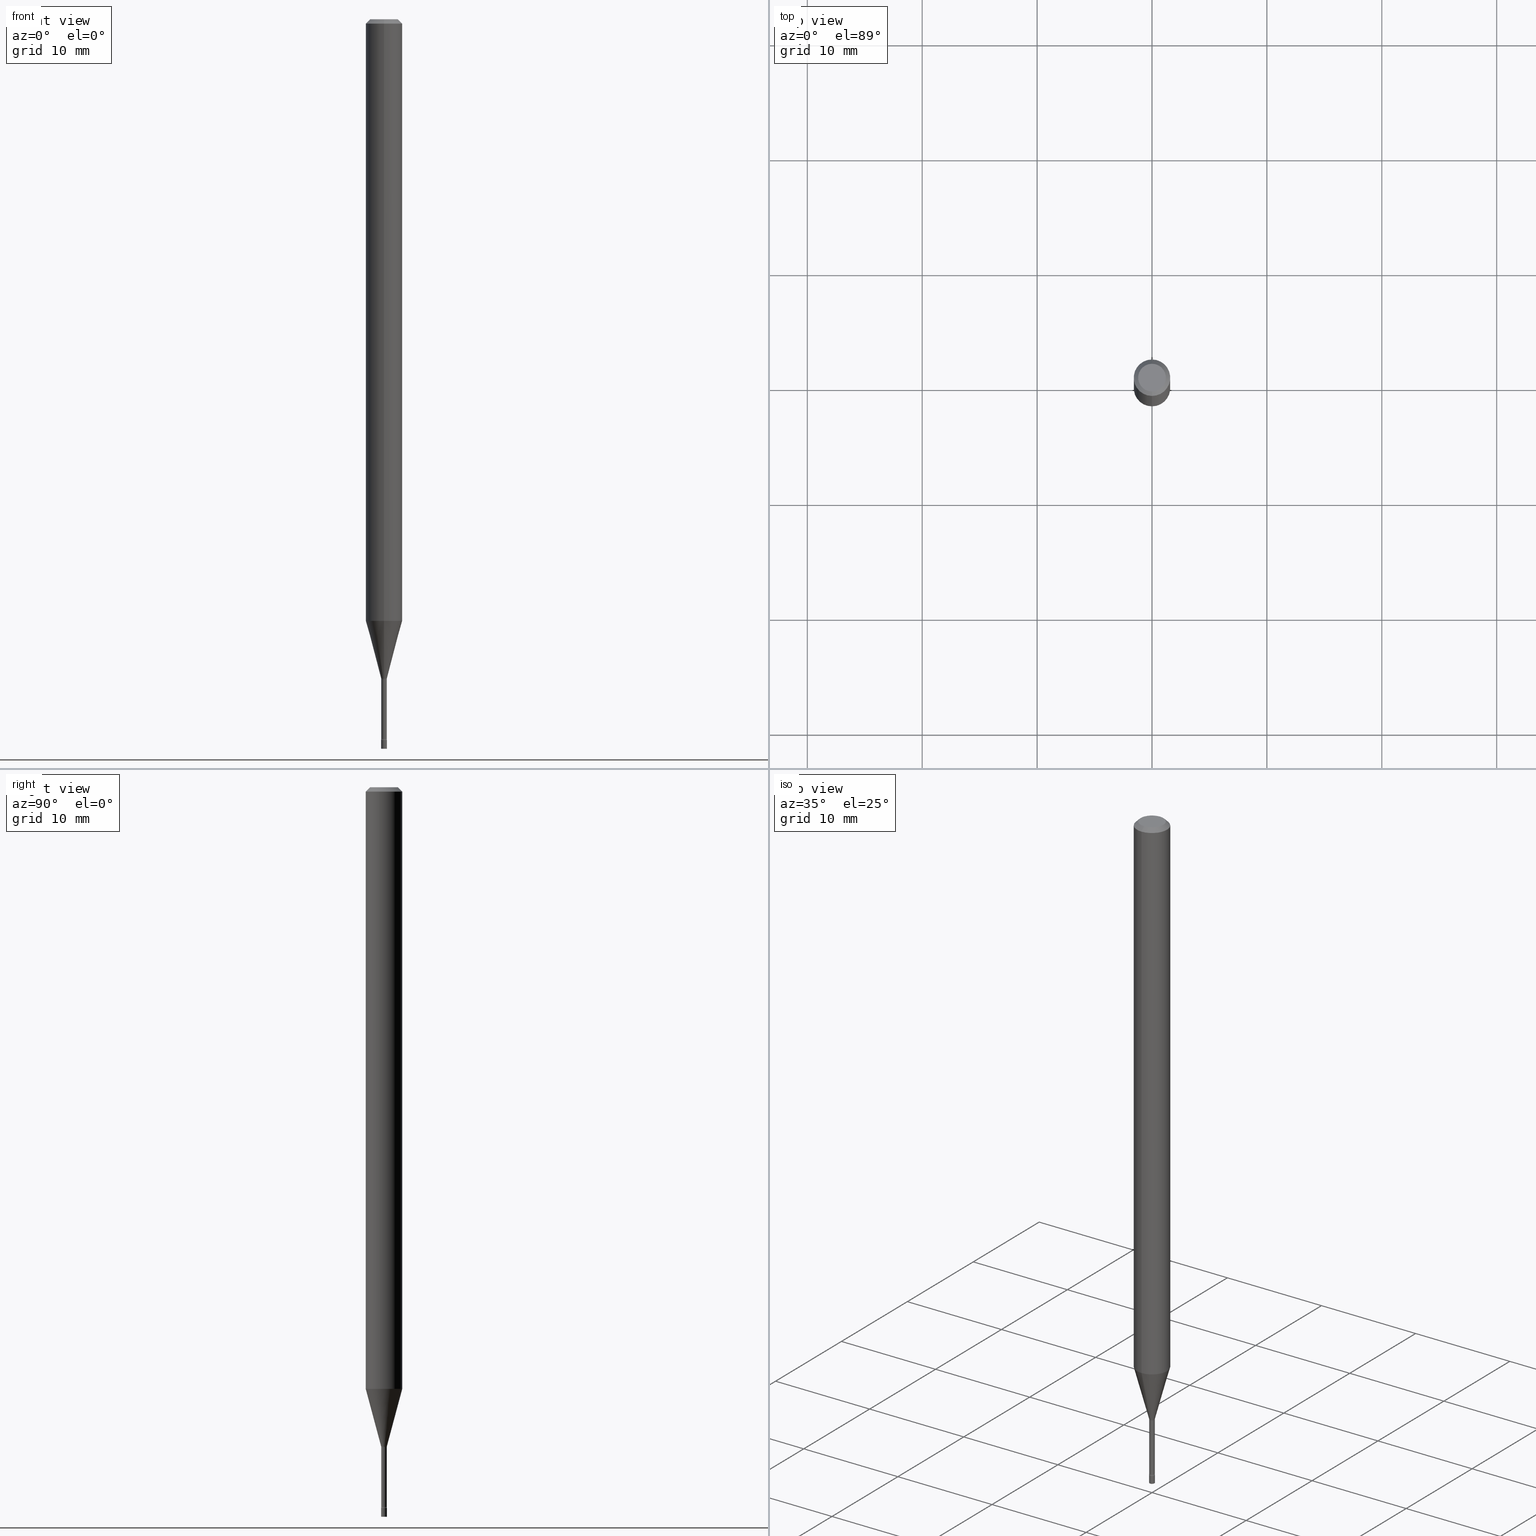
[diagram: canonical four-view strip — front | top / right | iso, engineering-drawing reading convention]
A machine part, canonical four-view strip (front | top / right | iso — engineering-drawing reading convention). The complete STEP part file that produces these views, byte-faithful:
ISO-10303-21;
HEADER;
FILE_DESCRIPTION (( 'STEP AP203' ),
    '1' );
FILE_NAME ('03591.STEP',
    '2024-03-08T21:59:14',
    ( '' ),
    ( '' ),
    'SwSTEP 2.0',
    'SolidWorks 2023',
    '' );
FILE_SCHEMA (( 'CONFIG_CONTROL_DESIGN' ));
ENDSEC;

DATA;
#1 = FACE_OUTER_BOUND ( 'NONE', #404, .T. ) ;
#2 = CC_DESIGN_PERSON_AND_ORGANIZATION_ASSIGNMENT ( #50, #459, ( #91 ) ) ;
#3 = ORIENTED_EDGE ( 'NONE', *, *, #140, .F. ) ;
#4 = DIRECTION ( 'NONE',  ( 1.000000000000000000, -7.105427357601001070E-15, 4.926315979417128500E-29 ) ) ;
#5 = DIRECTION ( 'NONE',  ( -2.438088387897960049E-29, 3.491481338843145188E-15, 1.000000000000000000 ) ) ;
#6 = CARTESIAN_POINT ( 'NONE',  ( 6.679101716150980493E-17, 0.009399999999992103908, -2.261974787463811420 ) ) ;
#7 = TOROIDAL_SURFACE ( 'NONE', #72, 0.02440000000000002583, 0.01500000000000000291 ) ;
#8 = LINE ( 'NONE', #485, #308 ) ;
#9 = DIRECTION ( 'NONE',  ( 1.000000000000000000, -7.105427357601001070E-15, 4.926315979417128500E-29 ) ) ;
#10 = ADVANCED_FACE ( 'NONE', ( #1 ), #291, .T. ) ;
#11 = DIRECTION ( 'NONE',  ( -6.982962677686265922E-15, -1.000000000000000000, 0.000000000000000000 ) ) ;
#12 = SHAPE_DEFINITION_REPRESENTATION ( #174, #416 ) ;
#13 = TOROIDAL_SURFACE ( 'NONE', #495, 0.02440000000000002583, 0.01500000000000000291 ) ;
#14 = DATE_TIME_ROLE ( 'creation_date' ) ;
#15 = DATE_TIME_ROLE ( 'classification_date' ) ;
#16 = PERSON_AND_ORGANIZATION ( #407, #465 ) ;
#17 = DIRECTION ( 'NONE',  ( -2.445441956787615872E-29, 3.491519788708568062E-15, 1.000000000000000000 ) ) ;
#18 = AXIS2_PLACEMENT_3D ( 'NONE', #483, #240, #154 ) ;
#19 = CARTESIAN_POINT ( 'NONE',  ( 3.840629472727447874E-16, 0.04749999999999999362, -1.947592745229184119E-16 ) ) ;
#20 = VERTEX_POINT ( 'NONE', #446 ) ;
#21 = CARTESIAN_POINT ( 'NONE',  ( 4.440892098500625669E-16, 0.06250000000000000000, -2.182199867942855038E-16 ) ) ;
#22 = DIRECTION ( 'NONE',  ( -1.000000000000000000, 6.982962677686265922E-15, -4.883557194083112340E-29 ) ) ;
#23 = CARTESIAN_POINT ( 'NONE',  ( 5.531588783120004822E-29, -7.897642759363587821E-15, -2.261974787463811420 ) ) ;
#24 = CIRCLE ( 'NONE', #380, 0.01000000000000000021 ) ;
#25 = ORIENTED_EDGE ( 'NONE', *, *, #87, .T. ) ;
#26 = DIRECTION ( 'NONE',  ( -6.982962677686265922E-15, -1.000000000000000000, 0.000000000000000000 ) ) ;
#27 = CARTESIAN_POINT ( 'NONE',  ( -6.920892941964220806E-17, -0.009911112605671861323, -2.258092501787273498 ) ) ;
#28 = CARTESIAN_POINT ( 'NONE',  ( 6.982962677692379396E-17, 0.009999999999991271080, -2.500000000000000000 ) ) ;
#29 = EDGE_LOOP ( 'NONE', ( #67, #158, #504, #162 ) ) ;
#30 = LINE ( 'NONE', #61, #131 ) ;
#31 = CYLINDRICAL_SURFACE ( 'NONE', #388, 0.01000000000000000021 ) ;
#32 = ORIENTED_EDGE ( 'NONE', *, *, #261, .T. ) ;
#33 = VERTEX_POINT ( 'NONE', #338 ) ;
#34 = VERTEX_POINT ( 'NONE', #209 ) ;
#35 = AXIS2_PLACEMENT_3D ( 'NONE', #68, #232, #397 ) ;
#36 = AXIS2_PLACEMENT_3D ( 'NONE', #23, #505, #151 ) ;
#37 = CARTESIAN_POINT ( 'NONE',  ( -4.287811248607203282E-16, -0.06250000000000005551, -0.01499999999999981209 ) ) ;
#38 = CARTESIAN_POINT ( 'NONE',  ( 7.070282463940929696E-46, -1.009471153714767306E-31, -2.891208455926143242E-17 ) ) ;
#39 = VERTEX_POINT ( 'NONE', #166 ) ;
#40 = ORIENTED_EDGE ( 'NONE', *, *, #175, .F. ) ;
#41 = ORIENTED_EDGE ( 'NONE', *, *, #163, .F. ) ;
#42 = EDGE_CURVE ( 'NONE', #453, #242, #259, .T. ) ;
#43 = DIRECTION ( 'NONE',  ( -2.445441956787615872E-29, 3.491519788708568062E-15, 1.000000000000000000 ) ) ;
#44 = CARTESIAN_POINT ( 'NONE',  ( 6.040241633265411744E-29, -8.624053878110164855E-15, -2.470000000000000195 ) ) ;
#45 = CIRCLE ( 'NONE', #62, 0.009911112605663977004 ) ;
#46 = VECTOR ( 'NONE', #454, 39.37007874015748143 ) ;
#47 = CALENDAR_DATE ( 2024, 8, 3 ) ;
#48 = ADVANCED_FACE ( 'NONE', ( #369 ), #325, .T. ) ;
#49 = DATE_AND_TIME ( #305, #52 ) ;
#50 = PERSON_AND_ORGANIZATION ( #407, #465 ) ;
#51 = CIRCLE ( 'NONE', #156, 0.01500000000000002720 ) ;
#52 = LOCAL_TIME ( 16, 59, 14.00000000000000000, #93 ) ;
#53 = ADVANCED_FACE ( 'NONE', ( #246 ), #479, .T. ) ;
#54 = COORDINATED_UNIVERSAL_TIME_OFFSET ( 5, 0, .BEHIND. ) ;
#55 = DIRECTION ( 'NONE',  ( 2.445441956787615872E-29, -3.491519788708568062E-15, -1.000000000000000000 ) ) ;
#56 = PERSON_AND_ORGANIZATION ( #407, #465 ) ;
#57 = CARTESIAN_POINT ( 'NONE',  ( -6.920892941964220806E-17, -0.009911112605671861323, -2.258092501787273498 ) ) ;
#58 = DIRECTION ( 'NONE',  ( -6.982962677686265922E-15, -1.000000000000000000, 4.370956789862821150E-15 ) ) ;
#59 = ADVANCED_FACE ( 'NONE', ( #518 ), #74, .F. ) ;
#60 = CARTESIAN_POINT ( 'NONE',  ( -4.364351673553912750E-16, -0.06250000000000005551, -0.01499999999999981209 ) ) ;
#61 = CARTESIAN_POINT ( 'NONE',  ( 6.679101716144950638E-17, 0.009400000000000012512, -3.282028601386058352E-17 ) ) ;
#62 = AXIS2_PLACEMENT_3D ( 'NONE', #310, #503, #386 ) ;
#63 = CARTESIAN_POINT ( 'NONE',  ( 0.000000000000000000, 0.000000000000000000, 0.000000000000000000 ) ) ;
#64 = CC_DESIGN_SECURITY_CLASSIFICATION ( #357, ( #136 ) ) ;
#65 = EDGE_CURVE ( 'NONE', #39, #228, #306, .T. ) ;
#66 = DIRECTION ( 'NONE',  ( -6.982962677686265922E-15, -1.000000000000000000, 3.491519788708568062E-15 ) ) ;
#67 = ORIENTED_EDGE ( 'NONE', *, *, #491, .F. ) ;
#68 = CARTESIAN_POINT ( 'NONE',  ( -1.703842893354895678E-16, -0.02440000000000789801, -2.261974787463811420 ) ) ;
#69 = ORIENTED_EDGE ( 'NONE', *, *, #42, .F. ) ;
#70 = DIRECTION ( 'NONE',  ( -6.982962677686265922E-15, -1.000000000000000000, 0.000000000000000000 ) ) ;
#71 = EDGE_LOOP ( 'NONE', ( #507, #444, #276, #429 ) ) ;
#72 = AXIS2_PLACEMENT_3D ( 'NONE', #311, #437, #277 ) ;
#73 = VERTEX_POINT ( 'NONE', #424 ) ;
#74 = PLANE ( 'NONE',  #18 ) ;
#75 = LINE ( 'NONE', #110, #408 ) ;
#76 = ORIENTED_EDGE ( 'NONE', *, *, #359, .T. ) ;
#77 = ORIENTED_EDGE ( 'NONE', *, *, #491, .T. ) ;
#78 = FACE_OUTER_BOUND ( 'NONE', #71, .T. ) ;
#79 = DIRECTION ( 'NONE',  ( 1.000000000000000000, -6.982962677686265922E-15, 4.876176775795935793E-29 ) ) ;
#80 = TOROIDAL_SURFACE ( 'NONE', #337, 0.02440000000000000155, 0.01500000000000002720 ) ;
#81 = AXIS2_PLACEMENT_3D ( 'NONE', #385, #22, #147 ) ;
#82 = EDGE_LOOP ( 'NONE', ( #332, #76 ) ) ;
#83 = EDGE_LOOP ( 'NONE', ( #241, #32, #414, #150 ) ) ;
#84 = DIRECTION ( 'NONE',  ( -2.445441956787615872E-29, 3.491519788708568062E-15, 1.000000000000000000 ) ) ;
#85 = ORIENTED_EDGE ( 'NONE', *, *, #42, .T. ) ;
#86 = MECHANICAL_CONTEXT ( 'NONE', #331, 'mechanical' ) ;
#87 = EDGE_CURVE ( 'NONE', #73, #242, #170, .T. ) ;
#88 = CIRCLE ( 'NONE', #273, 0.06250000000000000000 ) ;
#89 = DATE_AND_TIME ( #349, #171 ) ;
#90 = AXIS2_PLACEMENT_3D ( 'NONE', #411, #43, #286 ) ;
#91 = PRODUCT_DEFINITION ( 'UNKNOWN', '', #136, #347 ) ;
#92 = APPROVAL_STATUS ( 'not_yet_approved' ) ;
#93 = COORDINATED_UNIVERSAL_TIME_OFFSET ( 5, 0, .BEHIND. ) ;
#94 = APPLICATION_CONTEXT ( 'configuration controlled 3d designs of mechanical parts and assemblies' ) ;
#95 = ADVANCED_FACE ( 'NONE', ( #297 ), #80, .F. ) ;
#96 = SECURITY_CLASSIFICATION_LEVEL ( 'unclassified' ) ;
#97 = CONICAL_SURFACE ( 'NONE', #398, 0.009911112605663977004, 0.2617993877991500740 ) ;
#98 = LOCAL_TIME ( 16, 59, 14.00000000000000000, #384 ) ;
#99 = DIRECTION ( 'NONE',  ( -2.445468806185136597E-29, 3.491481338843145583E-15, 1.000000000000000000 ) ) ;
#100 = FACE_OUTER_BOUND ( 'NONE', #326, .T. ) ;
#101 = EDGE_CURVE ( 'NONE', #330, #34, #512, .T. ) ;
#102 = CARTESIAN_POINT ( 'NONE',  ( 4.440892098501133005E-16, 0.06249999999999995143, -0.01500000000000024751 ) ) ;
#103 = ADVANCED_FACE ( 'NONE', ( #417 ), #13, .F. ) ;
#104 = CIRCLE ( 'NONE', #217, 0.009400000000000002104 ) ;
#105 = AXIS2_PLACEMENT_3D ( 'NONE', #213, #368, #116 ) ;
#106 = EDGE_CURVE ( 'NONE', #254, #108, #425, .T. ) ;
#107 = LINE ( 'NONE', #139, #145 ) ;
#108 = VERTEX_POINT ( 'NONE', #167 ) ;
#109 = CARTESIAN_POINT ( 'NONE',  ( -6.982962677680226008E-17, -0.01000000000000862178, -2.470000000000000195 ) ) ;
#110 = CARTESIAN_POINT ( 'NONE',  ( 0.01000000000000000021, -6.982962677686265724E-17, 4.876176775795935968E-31 ) ) ;
#111 = ORIENTED_EDGE ( 'NONE', *, *, #226, .T. ) ;
#112 = AXIS2_PLACEMENT_3D ( 'NONE', #63, #390, #143 ) ;
#113 = VECTOR ( 'NONE', #515, 39.37007874015748854 ) ;
#114 = ORIENTED_EDGE ( 'NONE', *, *, #312, .T. ) ;
#115 = ORIENTED_EDGE ( 'NONE', *, *, #263, .T. ) ;
#116 = DIRECTION ( 'NONE',  ( 1.000000000000000000, 0.000000000000000000, 0.000000000000000000 ) ) ;
#117 = DIRECTION ( 'NONE',  ( 1.000000000000000000, -6.982962677686265922E-15, 4.876176775795935793E-29 ) ) ;
#118 = ORIENTED_EDGE ( 'NONE', *, *, #106, .T. ) ;
#119 = DIRECTION ( 'NONE',  ( -2.445441956787615872E-29, 3.491519788708568062E-15, 1.000000000000000000 ) ) ;
#120 = EDGE_LOOP ( 'NONE', ( #69, #41 ) ) ;
#121 = CC_DESIGN_DATE_AND_TIME_ASSIGNMENT ( #260, #15, ( #357 ) ) ;
#122 = DIRECTION ( 'NONE',  ( 1.000000000000000000, -6.982962677686265922E-15, 4.876176775795935793E-29 ) ) ;
#123 = AXIS2_PLACEMENT_3D ( 'NONE', #38, #508, #197 ) ;
#124 = APPROVAL_PERSON_ORGANIZATION ( #420, #134, #133 ) ;
#125 = ORIENTED_EDGE ( 'NONE', *, *, #196, .F. ) ;
#126 = DIRECTION ( 'NONE',  ( -2.445441956787615872E-29, 3.491519788708568062E-15, 1.000000000000000000 ) ) ;
#127 = ORIENTED_EDGE ( 'NONE', *, *, #263, .F. ) ;
#128 = CARTESIAN_POINT ( 'NONE',  ( 3.316907271900976096E-16, 0.04749999999999999362, -1.803032322432877018E-16 ) ) ;
#129 = APPROVAL_ROLE ( '' ) ;
#130 = AXIS2_PLACEMENT_3D ( 'NONE', #441, #5, #122 ) ;
#131 = VECTOR ( 'NONE', #224, 39.37007874015748143 ) ;
#132 = COORDINATED_UNIVERSAL_TIME_OFFSET ( 5, 0, .BEHIND. ) ;
#133 = APPROVAL_ROLE ( '' ) ;
#134 = APPROVAL ( #493, 'UNSPECIFIED' ) ;
#135 = DATE_AND_TIME ( #47, #426 ) ;
#136 = PRODUCT_DEFINITION_FORMATION_WITH_SPECIFIED_SOURCE ( 'ANY', '', #256, .NOT_KNOWN. ) ;
#137 = DIRECTION ( 'NONE',  ( -2.445441956787615872E-29, 3.491519788708568062E-15, 1.000000000000000000 ) ) ;
#138 = DIRECTION ( 'NONE',  ( -1.807323732225328562E-15, -0.2588190451025179639, 0.9659258262890690894 ) ) ;
#139 = CARTESIAN_POINT ( 'NONE',  ( -4.364351673553916201E-16, -0.06250000000000000000, 2.182199867942855038E-16 ) ) ;
#140 = EDGE_CURVE ( 'NONE', #238, #401, #315, .T. ) ;
#141 = FACE_OUTER_BOUND ( 'NONE', #438, .T. ) ;
#142 = CARTESIAN_POINT ( 'NONE',  ( 6.029970777046903326E-29, -8.609389494997588601E-15, -2.465800000000000214 ) ) ;
#143 = DIRECTION ( 'NONE',  ( -6.982962677686265922E-15, -1.000000000000000000, 3.491519788708568062E-15 ) ) ;
#144 = VERTEX_POINT ( 'NONE', #6 ) ;
#145 = VECTOR ( 'NONE', #319, 39.37007874015748143 ) ;
#146 = CIRCLE ( 'NONE', #275, 0.009400000000000024655 ) ;
#147 = DIRECTION ( 'NONE',  ( -6.982962677686266711E-15, -1.000000000000000000, 0.000000000000000000 ) ) ;
#148 = ORIENTED_EDGE ( 'NONE', *, *, #510, .F. ) ;
#149 = DIRECTION ( 'NONE',  ( 1.000000000000000000, -6.982962677686235945E-15, 0.000000000000000000 ) ) ;
#150 = ORIENTED_EDGE ( 'NONE', *, *, #204, .F. ) ;
#151 = DIRECTION ( 'NONE',  ( -6.982962677686265922E-15, -1.000000000000000000, 3.491519788708567667E-15 ) ) ;
#152 = EDGE_LOOP ( 'NONE', ( #125, #207, #370, #127 ) ) ;
#153 = ORIENTED_EDGE ( 'NONE', *, *, #484, .F. ) ;
#154 = DIRECTION ( 'NONE',  ( -6.982962677686265922E-15, -1.000000000000000000, 3.491519788708568062E-15 ) ) ;
#155 = CARTESIAN_POINT ( 'NONE',  ( 5.531588783120004822E-29, -7.897642759363587821E-15, -2.261974787463811420 ) ) ;
#156 = AXIS2_PLACEMENT_3D ( 'NONE', #374, #4, #329 ) ;
#157 = CC_DESIGN_APPROVAL ( #257, ( #136 ) ) ;
#158 = ORIENTED_EDGE ( 'NONE', *, *, #196, .T. ) ;
#159 = LENGTH_MEASURE_WITH_UNIT ( LENGTH_MEASURE( 0.02539999999999999897 ), #250 );
#160 = CARTESIAN_POINT ( 'NONE',  ( 6.040307951277287977E-29, -8.623958906942569995E-15, -2.470000000000000195 ) ) ;
#161 = CC_DESIGN_PERSON_AND_ORGANIZATION_ASSIGNMENT ( #219, #344, ( #136 ) ) ;
#162 = ORIENTED_EDGE ( 'NONE', *, *, #226, .F. ) ;
#163 = EDGE_CURVE ( 'NONE', #242, #453, #24, .T. ) ;
#164 =( CONVERSION_BASED_UNIT ( 'INCH', #159 ) LENGTH_UNIT ( ) NAMED_UNIT ( #177 ) );
#165 = DIRECTION ( 'NONE',  ( -2.445468806185136877E-29, 3.491481338843145188E-15, 1.000000000000000000 ) ) ;
#166 = CARTESIAN_POINT ( 'NONE',  ( 0.01000000000000000021, -8.693788533719433294E-15, -2.470000000000000195 ) ) ;
#167 = CARTESIAN_POINT ( 'NONE',  ( -3.773273898774340269E-16, -0.04749999999999999362, 1.369351054043955470E-16 ) ) ;
#168 = ORIENTED_EDGE ( 'NONE', *, *, #488, .T. ) ;
#169 = ORIENTED_EDGE ( 'NONE', *, *, #272, .T. ) ;
#170 = CIRCLE ( 'NONE', #221, 0.01500000000000000638 ) ;
#171 = LOCAL_TIME ( 16, 59, 14.00000000000000000, #132 ) ;
#172 = MANIFOLD_SOLID_BREP ( 'Body-Move/Copy2[2]', #481 ) ;
#173 = PERSON_AND_ORGANIZATION ( #407, #465 ) ;
#174 = PRODUCT_DEFINITION_SHAPE ( 'NONE', 'NONE',  #91 ) ;
#175 = EDGE_CURVE ( 'NONE', #436, #20, #500, .T. ) ;
#176 = LINE ( 'NONE', #37, #46 ) ;
#177 = DIMENSIONAL_EXPONENTS ( 1.000000000000000000, 0.000000000000000000, 0.000000000000000000, 0.000000000000000000, 0.000000000000000000, 0.000000000000000000, 0.000000000000000000 ) ;
#178 = ADVANCED_FACE ( 'NONE', ( #494 ), #97, .T. ) ;
#179 = CIRCLE ( 'NONE', #367, 0.009400000000000002104 ) ;
#180 = PERSON_AND_ORGANIZATION ( #407, #465 ) ;
#181 = CARTESIAN_POINT ( 'NONE',  ( 1.733724275255249028E-16, 0.02439999999999141814, -2.465800000000000214 ) ) ;
#182 = DATE_AND_TIME ( #216, #409 ) ;
#183 = APPROVAL_DATE_TIME ( #182, #343 ) ;
#184 = DIRECTION ( 'NONE',  ( 1.000000000000000000, -6.982962677686235945E-15, 0.000000000000000000 ) ) ;
#185 = COORDINATED_UNIVERSAL_TIME_OFFSET ( 5, 0, .BEHIND. ) ;
#186 = CIRCLE ( 'NONE', #35, 0.01500000000000002720 ) ;
#187 = DIRECTION ( 'NONE',  ( -6.982962677686265922E-15, -1.000000000000000000, 0.000000000000000000 ) ) ;
#188 = CARTESIAN_POINT ( 'NONE',  ( -6.563984917019076245E-17, -0.009400000000008634088, -2.465800000000000214 ) ) ;
#189 = DIRECTION ( 'NONE',  ( -2.445441956787615872E-29, 3.491519788708568062E-15, 1.000000000000000000 ) ) ;
#190 = ORIENTED_EDGE ( 'NONE', *, *, #460, .F. ) ;
#191 = AXIS2_PLACEMENT_3D ( 'NONE', #362, #506, #333 ) ;
#192 = CARTESIAN_POINT ( 'NONE',  ( 5.522034146178111760E-29, -7.884174654724702167E-15, -2.258092501787273498 ) ) ;
#193 = DIRECTION ( 'NONE',  ( -2.445441956787615872E-29, 3.491519788708568062E-15, 1.000000000000000000 ) ) ;
#194 = ORIENTED_EDGE ( 'NONE', *, *, #204, .T. ) ;
#195 = CARTESIAN_POINT ( 'NONE',  ( -0.01000000000000000021, -8.605276853449206598E-15, -2.500000000000000000 ) ) ;
#196 = EDGE_CURVE ( 'NONE', #33, #289, #45, .T. ) ;
#197 = DIRECTION ( 'NONE',  ( -6.982962677686266711E-15, -1.000000000000000000, 3.491519788708568062E-15 ) ) ;
#198 = DIRECTION ( 'NONE',  ( 2.438088387897960049E-29, -3.491481338843145188E-15, -1.000000000000000000 ) ) ;
#199 = ORIENTED_EDGE ( 'NONE', *, *, #237, .T. ) ;
#200 = DIRECTION ( 'NONE',  ( 2.445441956787615872E-29, -3.491519788708568062E-15, -1.000000000000000000 ) ) ;
#201 = AXIS2_PLACEMENT_3D ( 'NONE', #322, #269, #58 ) ;
#202 = ORIENTED_EDGE ( 'NONE', *, *, #517, .T. ) ;
#203 = EDGE_LOOP ( 'NONE', ( #148, #285, #249, #292 ) ) ;
#204 = EDGE_CURVE ( 'NONE', #330, #401, #107, .T. ) ;
#205 = EDGE_LOOP ( 'NONE', ( #375, #202, #199, #239 ) ) ;
#206 = DIRECTION ( 'NONE',  ( -6.982962677686266711E-15, -1.000000000000000000, 3.491519788708568062E-15 ) ) ;
#207 = ORIENTED_EDGE ( 'NONE', *, *, #304, .T. ) ;
#208 =( NAMED_UNIT ( * ) PLANE_ANGLE_UNIT ( ) SI_UNIT ( $, .RADIAN. ) );
#209 = CARTESIAN_POINT ( 'NONE',  ( 4.440892098501128074E-16, 0.06249999999999279743, -2.061828102118093753 ) ) ;
#210 = DIRECTION ( 'NONE',  ( -6.982962677686265922E-15, -1.000000000000000000, 3.483106191921935554E-15 ) ) ;
#211 = DIRECTION ( 'NONE',  ( -6.982962677686265922E-15, -1.000000000000000000, 3.491519788708567667E-15 ) ) ;
#212 = CIRCLE ( 'NONE', #236, 0.01000000000000000021 ) ;
#213 = CARTESIAN_POINT ( 'NONE',  ( 0.000000000000000000, 0.000000000000000000, 0.000000000000000000 ) ) ;
#214 = DIRECTION ( 'NONE',  ( -2.445441956787615872E-29, 3.491519788708568062E-15, 1.000000000000000000 ) ) ;
#215 = ADVANCED_FACE ( 'NONE', ( #434 ), #7, .F. ) ;
#216 = CALENDAR_DATE ( 2024, 8, 3 ) ;
#217 = AXIS2_PLACEMENT_3D ( 'NONE', #244, #126, #251 ) ;
#218 = EDGE_CURVE ( 'NONE', #144, #360, #179, .T. ) ;
#219 = PERSON_AND_ORGANIZATION ( #407, #465 ) ;
#220 = CARTESIAN_POINT ( 'NONE',  ( -0.01000000000000000021, -8.605276853449206598E-15, -2.470000000000000195 ) ) ;
#221 = AXIS2_PLACEMENT_3D ( 'NONE', #181, #9, #455 ) ;
#222 = CARTESIAN_POINT ( 'NONE',  ( 0.000000000000000000, 0.000000000000000000, 0.000000000000000000 ) ) ;
#223 = AXIS2_PLACEMENT_3D ( 'NONE', #28, #198, #405 ) ;
#224 = DIRECTION ( 'NONE',  ( -2.445441956787615872E-29, 3.491519788708568062E-15, 1.000000000000000000 ) ) ;
#225 = FACE_OUTER_BOUND ( 'NONE', #470, .T. ) ;
#226 = EDGE_CURVE ( 'NONE', #34, #330, #450, .T. ) ;
#227 = DIRECTION ( 'NONE',  ( -2.445441956787615872E-29, 3.491519788708568062E-15, 1.000000000000000000 ) ) ;
#228 = VERTEX_POINT ( 'NONE', #220 ) ;
#229 = CARTESIAN_POINT ( 'NONE',  ( 3.668162935181430919E-31, -5.237279683062863531E-17, -0.01500000000000003067 ) ) ;
#230 = CYLINDRICAL_SURFACE ( 'NONE', #433, 0.06250000000000000000 ) ;
#231 = DIRECTION ( 'NONE',  ( -2.445441956787615872E-29, 3.491519788708568062E-15, 1.000000000000000000 ) ) ;
#232 = DIRECTION ( 'NONE',  ( -1.000000000000000000, 6.982962677686265922E-15, -4.883557194083112340E-29 ) ) ;
#233 = PRODUCT_RELATED_PRODUCT_CATEGORY ( 'detail', '', ( #256 ) ) ;
#234 = ADVANCED_FACE ( 'NONE', ( #428 ), #280, .T. ) ;
#235 = CIRCLE ( 'NONE', #464, 0.009400000000000024655 ) ;
#236 = AXIS2_PLACEMENT_3D ( 'NONE', #466, #461, #184 ) ;
#237 = EDGE_CURVE ( 'NONE', #401, #238, #88, .T. ) ;
#238 = VERTEX_POINT ( 'NONE', #102 ) ;
#239 = ORIENTED_EDGE ( 'NONE', *, *, #258, .F. ) ;
#240 = DIRECTION ( 'NONE',  ( -2.445441956787615591E-29, 3.491519788708568062E-15, 1.000000000000000000 ) ) ;
#241 = ORIENTED_EDGE ( 'NONE', *, *, #101, .T. ) ;
#242 = VERTEX_POINT ( 'NONE', #271 ) ;
#243 = APPLICATION_PROTOCOL_DEFINITION ( 'international standard', 'config_control_design', 1994, #331 ) ;
#244 = CARTESIAN_POINT ( 'NONE',  ( 5.531528050459754336E-29, -7.897729731989754803E-15, -2.261974787463811420 ) ) ;
#245 = CLOSED_SHELL ( 'NONE', ( #267, #53, #48, #10 ) ) ;
#246 = FACE_OUTER_BOUND ( 'NONE', #82, .T. ) ;
#247 = DIRECTION ( 'NONE',  ( -2.445441956787615872E-29, 3.491519788708568062E-15, 1.000000000000000000 ) ) ;
#248 = VECTOR ( 'NONE', #482, 39.37007874015748143 ) ;
#249 = ORIENTED_EDGE ( 'NONE', *, *, #301, .T. ) ;
#250 =( LENGTH_UNIT ( ) NAMED_UNIT ( * ) SI_UNIT ( $, .METRE. ) );
#251 = DIRECTION ( 'NONE',  ( -6.982962677686265922E-15, -1.000000000000000000, 0.000000000000000000 ) ) ;
#252 = ORIENTED_EDGE ( 'NONE', *, *, #468, .T. ) ;
#253 = ADVANCED_FACE ( 'NONE', ( #225 ), #394, .T. ) ;
#254 = VERTEX_POINT ( 'NONE', #19 ) ;
#255 = DIRECTION ( 'NONE',  ( -2.445441956787615872E-29, 3.491519788708568062E-15, 1.000000000000000000 ) ) ;
#256 = PRODUCT ( '03591', '03591', '', ( #86 ) ) ;
#257 = APPROVAL ( #492, 'UNSPECIFIED' ) ;
#258 = EDGE_CURVE ( 'NONE', #254, #238, #353, .T. ) ;
#259 = CIRCLE ( 'NONE', #191, 0.01000000000000000021 ) ;
#260 = DATE_AND_TIME ( #264, #98 ) ;
#261 = EDGE_CURVE ( 'NONE', #34, #238, #463, .T. ) ;
#262 = PERSON_AND_ORGANIZATION_ROLE ( 'design_supplier' ) ;
#263 = EDGE_CURVE ( 'NONE', #289, #360, #186, .T. ) ;
#264 = CALENDAR_DATE ( 2024, 8, 3 ) ;
#265 = AXIS2_PLACEMENT_3D ( 'NONE', #472, #283, #79 ) ;
#266 = CC_DESIGN_DATE_AND_TIME_ASSIGNMENT ( #89, #14, ( #91 ) ) ;
#267 = ADVANCED_FACE ( 'NONE', ( #78 ), #31, .T. ) ;
#268 = CARTESIAN_POINT ( 'NONE',  ( 5.042080948603366271E-29, -7.198913619460753817E-15, -2.061828102118093309 ) ) ;
#269 = DIRECTION ( 'NONE',  ( -2.445441956787615872E-29, 3.491519788708568062E-15, 1.000000000000000000 ) ) ;
#270 = DIRECTION ( 'NONE',  ( -2.445441956787615872E-29, 3.491519788708568062E-15, 1.000000000000000000 ) ) ;
#271 = CARTESIAN_POINT ( 'NONE',  ( 7.105427357607040490E-17, 0.009999999999991376898, -2.470000000000000195 ) ) ;
#272 = EDGE_CURVE ( 'NONE', #360, #144, #104, .T. ) ;
#273 = AXIS2_PLACEMENT_3D ( 'NONE', #229, #431, #462 ) ;
#274 = FACE_OUTER_BOUND ( 'NONE', #83, .T. ) ;
#275 = AXIS2_PLACEMENT_3D ( 'NONE', #142, #231, #26 ) ;
#276 = ORIENTED_EDGE ( 'NONE', *, *, #65, .F. ) ;
#277 = DIRECTION ( 'NONE',  ( -6.982962677686265922E-15, -1.000000000000000000, 3.491519788708567667E-15 ) ) ;
#278 = ORIENTED_EDGE ( 'NONE', *, *, #365, .F. ) ;
#279 = DIRECTION ( 'NONE',  ( -2.445468806185136597E-29, 3.491481338843145583E-15, 1.000000000000000000 ) ) ;
#280 = CONICAL_SURFACE ( 'NONE', #293, 0.009911112605663977004, 0.2617993877991500740 ) ;
#281 = FACE_OUTER_BOUND ( 'NONE', #205, .T. ) ;
#282 = CC_DESIGN_APPROVAL ( #134, ( #357 ) ) ;
#283 = DIRECTION ( 'NONE',  ( -2.445468806185136597E-29, 3.491481338843145583E-15, 1.000000000000000000 ) ) ;
#284 = DIRECTION ( 'NONE',  ( -6.982962677686265922E-15, -1.000000000000000000, 3.491519788708567667E-15 ) ) ;
#285 = ORIENTED_EDGE ( 'NONE', *, *, #175, .T. ) ;
#286 = DIRECTION ( 'NONE',  ( -6.982962677686265922E-15, -1.000000000000000000, 0.000000000000000000 ) ) ;
#287 = DIRECTION ( 'NONE',  ( -2.445441956787615872E-29, 3.491519788708568062E-15, 1.000000000000000000 ) ) ;
#288 = EDGE_LOOP ( 'NONE', ( #372, #373, #480, #85 ) ) ;
#289 = VERTEX_POINT ( 'NONE', #27 ) ;
#290 = FACE_OUTER_BOUND ( 'NONE', #509, .T. ) ;
#291 = PLANE ( 'NONE',  #223 ) ;
#292 = ORIENTED_EDGE ( 'NONE', *, *, #359, .F. ) ;
#293 = AXIS2_PLACEMENT_3D ( 'NONE', #192, #17, #187 ) ;
#294 = DIRECTION ( 'NONE',  ( 1.000000000000000000, -6.982962677686235945E-15, 0.000000000000000000 ) ) ;
#295 = CARTESIAN_POINT ( 'NONE',  ( 3.668162935181430919E-31, -5.237279683062863531E-17, -0.01500000000000003067 ) ) ;
#296 = CIRCLE ( 'NONE', #81, 0.01499999999999999771 ) ;
#297 = FACE_OUTER_BOUND ( 'NONE', #502, .T. ) ;
#298 = ORIENTED_EDGE ( 'NONE', *, *, #517, .F. ) ;
#299 =( NAMED_UNIT ( * ) SI_UNIT ( $, .STERADIAN. ) SOLID_ANGLE_UNIT ( ) );
#300 = CARTESIAN_POINT ( 'NONE',  ( 6.029970777046903326E-29, -8.609389494997588601E-15, -2.465800000000000214 ) ) ;
#301 = EDGE_CURVE ( 'NONE', #20, #39, #75, .T. ) ;
#302 = DIRECTION ( 'NONE',  ( 2.445441956787615591E-29, -3.491519788708568062E-15, -1.000000000000000000 ) ) ;
#303 = EDGE_CURVE ( 'NONE', #474, #73, #235, .T. ) ;
#304 = EDGE_CURVE ( 'NONE', #33, #144, #51, .T. ) ;
#305 = CALENDAR_DATE ( 2024, 8, 3 ) ;
#306 = CIRCLE ( 'NONE', #489, 0.01000000000000000021 ) ;
#307 = APPROVAL_PERSON_ORGANIZATION ( #16, #343, #423 ) ;
#308 = VECTOR ( 'NONE', #336, 39.37007874015748143 ) ;
#309 = APPROVAL_DATE_TIME ( #135, #134 ) ;
#310 = CARTESIAN_POINT ( 'NONE',  ( 5.522034146178111760E-29, -7.884174654724702167E-15, -2.258092501787273498 ) ) ;
#311 = CARTESIAN_POINT ( 'NONE',  ( 6.030036982291310238E-29, -8.609294685319429365E-15, -2.465800000000000214 ) ) ;
#312 = EDGE_CURVE ( 'NONE', #108, #254, #376, .T. ) ;
#313 = DIRECTION ( 'NONE',  ( 4.937700262164548042E-15, 0.7071067811865451302, -0.7071067811865499042 ) ) ;
#314 = CC_DESIGN_PERSON_AND_ORGANIZATION_ASSIGNMENT ( #180, #262, ( #136 ) ) ;
#315 = CIRCLE ( 'NONE', #432, 0.06250000000000000000 ) ;
#316 = CARTESIAN_POINT ( 'NONE',  ( -4.364351673553412316E-16, -0.06250000000000720257, -2.061828102118092865 ) ) ;
#317 = EDGE_LOOP ( 'NONE', ( #366, #387, #449, #403 ) ) ;
#318 = AXIS2_PLACEMENT_3D ( 'NONE', #427, #55, #346 ) ;
#319 = DIRECTION ( 'NONE',  ( -2.445441956787615872E-29, 3.491519788708568062E-15, 1.000000000000000000 ) ) ;
#320 = ORIENTED_EDGE ( 'NONE', *, *, #399, .F. ) ;
#321 = CC_DESIGN_PERSON_AND_ORGANIZATION_ASSIGNMENT ( #173, #340, ( #256 ) ) ;
#322 = CARTESIAN_POINT ( 'NONE',  ( 5.042080948603366271E-29, -7.198913619460753817E-15, -2.061828102118093309 ) ) ;
#323 = ORIENTED_EDGE ( 'NONE', *, *, #106, .F. ) ;
#324 = ADVANCED_FACE ( 'NONE', ( #281 ), #473, .T. ) ;
#325 = CYLINDRICAL_SURFACE ( 'NONE', #265, 0.01000000000000000021 ) ;
#326 = EDGE_LOOP ( 'NONE', ( #334, #111, #194, #3 ) ) ;
#327 = AXIS2_PLACEMENT_3D ( 'NONE', #364, #247, #206 ) ;
#328 = ORIENTED_EDGE ( 'NONE', *, *, #101, .F. ) ;
#329 = DIRECTION ( 'NONE',  ( 7.105427357601000281E-15, 1.000000000000000000, 0.000000000000000000 ) ) ;
#330 = VERTEX_POINT ( 'NONE', #316 ) ;
#331 = APPLICATION_CONTEXT ( 'configuration controlled 3d designs of mechanical parts and assemblies' ) ;
#332 = ORIENTED_EDGE ( 'NONE', *, *, #65, .T. ) ;
#333 = DIRECTION ( 'NONE',  ( -6.982962677686265922E-15, -1.000000000000000000, 0.000000000000000000 ) ) ;
#334 = ORIENTED_EDGE ( 'NONE', *, *, #261, .F. ) ;
#335 = CC_DESIGN_PERSON_AND_ORGANIZATION_ASSIGNMENT ( #456, #345, ( #357 ) ) ;
#336 = DIRECTION ( 'NONE',  ( -2.445441956787615872E-29, 3.491519788708568062E-15, 1.000000000000000000 ) ) ;
#337 = AXIS2_PLACEMENT_3D ( 'NONE', #155, #255, #211 ) ;
#338 = CARTESIAN_POINT ( 'NONE',  ( 2.572559502513586973E-16, 0.009911112605656092686, -2.258092501787273498 ) ) ;
#339 = AXIS2_PLACEMENT_3D ( 'NONE', #222, #193, #400 ) ;
#340 = PERSON_AND_ORGANIZATION_ROLE ( 'design_owner' ) ;
#341 = DIRECTION ( 'NONE',  ( 6.982962677686265922E-15, 1.000000000000000000, -3.491519788708568062E-15 ) ) ;
#342 =( GEOMETRIC_REPRESENTATION_CONTEXT ( 3 ) GLOBAL_UNCERTAINTY_ASSIGNED_CONTEXT ( ( #422 ) ) GLOBAL_UNIT_ASSIGNED_CONTEXT ( ( #164, #208, #299 ) ) REPRESENTATION_CONTEXT ( 'NONE', 'WORKASPACE' ) );
#343 = APPROVAL ( #92, 'UNSPECIFIED' ) ;
#344 = PERSON_AND_ORGANIZATION_ROLE ( 'creator' ) ;
#345 = PERSON_AND_ORGANIZATION_ROLE ( 'classification_officer' ) ;
#346 = DIRECTION ( 'NONE',  ( 6.982962677686265922E-15, 1.000000000000000000, -3.483106191921935554E-15 ) ) ;
#347 = DESIGN_CONTEXT ( 'detailed design', #94, 'design' ) ;
#348 = TOROIDAL_SURFACE ( 'NONE', #36, 0.02440000000000000155, 0.01500000000000002720 ) ;
#349 = CALENDAR_DATE ( 2024, 8, 3 ) ;
#350 = LINE ( 'NONE', #57, #458 ) ;
#351 = CARTESIAN_POINT ( 'NONE',  ( 4.364351673553919652E-16, 0.06249999999999995143, -0.01500000000000024751 ) ) ;
#352 = DIRECTION ( 'NONE',  ( -6.982962677686265922E-15, -1.000000000000000000, 3.491519788708568062E-15 ) ) ;
#353 = LINE ( 'NONE', #351, #419 ) ;
#354 = MANIFOLD_SOLID_BREP ( 'Body-Move/Copy2[1]', #245 ) ;
#355 = VECTOR ( 'NONE', #467, 39.37007874015748143 ) ;
#356 = EDGE_LOOP ( 'NONE', ( #168, #77, #328, #278 ) ) ;
#357 = SECURITY_CLASSIFICATION ( '', '', #96 ) ;
#358 = DIRECTION ( 'NONE',  ( -6.982962677686265922E-15, -1.000000000000000000, 0.000000000000000000 ) ) ;
#359 = EDGE_CURVE ( 'NONE', #228, #39, #212, .T. ) ;
#360 = VERTEX_POINT ( 'NONE', #383 ) ;
#361 = FACE_OUTER_BOUND ( 'NONE', #152, .T. ) ;
#362 = CARTESIAN_POINT ( 'NONE',  ( 6.040241633265411744E-29, -8.624053878110164855E-15, -2.470000000000000195 ) ) ;
#363 = ORIENTED_EDGE ( 'NONE', *, *, #418, .F. ) ;
#364 = CARTESIAN_POINT ( 'NONE',  ( 7.070282463940929696E-46, -1.009471153714767306E-31, -2.891208455926143242E-17 ) ) ;
#365 = EDGE_CURVE ( 'NONE', #289, #330, #350, .T. ) ;
#366 = ORIENTED_EDGE ( 'NONE', *, *, #468, .F. ) ;
#367 = AXIS2_PLACEMENT_3D ( 'NONE', #498, #189, #70 ) ;
#368 = DIRECTION ( 'NONE',  ( 0.000000000000000000, 0.000000000000000000, 1.000000000000000000 ) ) ;
#369 = FACE_OUTER_BOUND ( 'NONE', #203, .T. ) ;
#370 = ORIENTED_EDGE ( 'NONE', *, *, #218, .T. ) ;
#371 = LINE ( 'NONE', #520, #248 ) ;
#372 = ORIENTED_EDGE ( 'NONE', *, *, #87, .F. ) ;
#373 = ORIENTED_EDGE ( 'NONE', *, *, #303, .F. ) ;
#374 = CARTESIAN_POINT ( 'NONE',  ( 1.733724275255197506E-16, 0.02439999999999210509, -2.261974787463811420 ) ) ;
#375 = ORIENTED_EDGE ( 'NONE', *, *, #312, .F. ) ;
#376 = CIRCLE ( 'NONE', #123, 0.04749999999999999362 ) ;
#377 = CIRCLE ( 'NONE', #381, 0.01000000000000000021 ) ;
#378 = PLANE ( 'NONE',  #451 ) ;
#379 = APPROVAL_DATE_TIME ( #49, #257 ) ;
#380 = AXIS2_PLACEMENT_3D ( 'NONE', #44, #214, #11 ) ;
#381 = AXIS2_PLACEMENT_3D ( 'NONE', #396, #279, #402 ) ;
#382 = ADVANCED_FACE ( 'NONE', ( #392 ), #496, .T. ) ;
#383 = CARTESIAN_POINT ( 'NONE',  ( -6.563984917019559422E-17, -0.009400000000007898565, -2.261974787463811420 ) ) ;
#384 = COORDINATED_UNIVERSAL_TIME_OFFSET ( 5, 0, .BEHIND. ) ;
#385 = CARTESIAN_POINT ( 'NONE',  ( -1.703842893354847853E-16, -0.02440000000000863700, -2.465800000000000214 ) ) ;
#386 = DIRECTION ( 'NONE',  ( -6.982962677686265922E-15, -1.000000000000000000, 0.000000000000000000 ) ) ;
#387 = ORIENTED_EDGE ( 'NONE', *, *, #418, .T. ) ;
#388 = AXIS2_PLACEMENT_3D ( 'NONE', #445, #471, #117 ) ;
#389 = APPROVAL_PERSON_ORGANIZATION ( #56, #257, #129 ) ;
#390 = DIRECTION ( 'NONE',  ( -2.445441956787615872E-29, 3.491519788708568062E-15, 1.000000000000000000 ) ) ;
#391 = ADVANCED_FACE ( 'NONE', ( #100 ), #230, .T. ) ;
#392 = FACE_OUTER_BOUND ( 'NONE', #317, .T. ) ;
#393 = ADVANCED_FACE ( 'NONE', ( #141 ), #514, .T. ) ;
#394 = CYLINDRICAL_SURFACE ( 'NONE', #112, 0.009400000000000012512 ) ;
#395 = CARTESIAN_POINT ( 'NONE',  ( 0.000000000000000000, 0.000000000000000000, 0.000000000000000000 ) ) ;
#396 = CARTESIAN_POINT ( 'NONE',  ( 6.113672015462842613E-29, -8.728703347107864943E-15, -2.500000000000000000 ) ) ;
#397 = DIRECTION ( 'NONE',  ( -6.982962677686265133E-15, -1.000000000000000000, 0.000000000000000000 ) ) ;
#398 = AXIS2_PLACEMENT_3D ( 'NONE', #469, #137, #358 ) ;
#399 = EDGE_CURVE ( 'NONE', #474, #453, #296, .T. ) ;
#400 = DIRECTION ( 'NONE',  ( -6.982962677686265922E-15, -1.000000000000000000, 3.491519788708568062E-15 ) ) ;
#401 = VERTEX_POINT ( 'NONE', #60 ) ;
#402 = DIRECTION ( 'NONE',  ( 1.000000000000000000, -6.982962677686235945E-15, 0.000000000000000000 ) ) ;
#403 = ORIENTED_EDGE ( 'NONE', *, *, #218, .F. ) ;
#404 = EDGE_LOOP ( 'NONE', ( #190, #40 ) ) ;
#405 = DIRECTION ( 'NONE',  ( -1.000000000000000000, 6.982962677686265922E-15, -4.876176775795935793E-29 ) ) ;
#406 = DIRECTION ( 'NONE',  ( -6.982962677686265922E-15, -1.000000000000000000, 4.370956789862821150E-15 ) ) ;
#407 = PERSON ( 'UNSPECIFIED', 'UNSPECIFIED', 'UNSPECIFIED', ('UNSPECIFIED'), ('UNSPECIFIED'), ('UNSPECIFIED') ) ;
#408 = VECTOR ( 'NONE', #165, 39.37007874015748143 ) ;
#409 = LOCAL_TIME ( 16, 59, 14.00000000000000000, #185 ) ;
#410 = DIRECTION ( 'NONE',  ( -2.445468806185136597E-29, 3.491481338843145583E-15, 1.000000000000000000 ) ) ;
#411 = CARTESIAN_POINT ( 'NONE',  ( 5.522034146178111760E-29, -7.884174654724702167E-15, -2.258092501787273498 ) ) ;
#412 = DIRECTION ( 'NONE',  ( -6.982962677686265922E-15, -1.000000000000000000, 0.000000000000000000 ) ) ;
#413 = ADVANCED_FACE ( 'NONE', ( #274 ), #430, .T. ) ;
#414 = ORIENTED_EDGE ( 'NONE', *, *, #237, .F. ) ;
#415 = DIRECTION ( 'NONE',  ( -2.445441956787615872E-29, 3.491519788708568062E-15, 1.000000000000000000 ) ) ;
#416 = ADVANCED_BREP_SHAPE_REPRESENTATION ( '03591', ( #354, #172, #105 ), #342 ) ;
#417 = FACE_OUTER_BOUND ( 'NONE', #519, .T. ) ;
#418 = EDGE_CURVE ( 'NONE', #73, #474, #146, .T. ) ;
#419 = VECTOR ( 'NONE', #313, 39.37007874015748143 ) ;
#420 = PERSON_AND_ORGANIZATION ( #407, #465 ) ;
#421 = APPLICATION_PROTOCOL_DEFINITION ( 'international standard', 'config_control_design', 1994, #94 ) ;
#422 = UNCERTAINTY_MEASURE_WITH_UNIT (LENGTH_MEASURE( 1.000000000000000082E-05 ), #164, 'distance_accuracy_value', 'NONE');
#423 = APPROVAL_ROLE ( '' ) ;
#424 = CARTESIAN_POINT ( 'NONE',  ( 6.892264536879014190E-17, 0.009399999999991415223, -2.465800000000000214 ) ) ;
#425 = CIRCLE ( 'NONE', #327, 0.04749999999999999362 ) ;
#426 = LOCAL_TIME ( 16, 59, 14.00000000000000000, #54 ) ;
#427 = CARTESIAN_POINT ( 'NONE',  ( 3.668162935181430919E-31, -5.237279683062863531E-17, -0.01500000000000003067 ) ) ;
#428 = FACE_OUTER_BOUND ( 'NONE', #29, .T. ) ;
#429 = ORIENTED_EDGE ( 'NONE', *, *, #301, .F. ) ;
#430 = CYLINDRICAL_SURFACE ( 'NONE', #339, 0.06250000000000000000 ) ;
#431 = DIRECTION ( 'NONE',  ( -2.445441956787615872E-29, 3.491519788708568062E-15, 1.000000000000000000 ) ) ;
#432 = AXIS2_PLACEMENT_3D ( 'NONE', #295, #84, #210 ) ;
#433 = AXIS2_PLACEMENT_3D ( 'NONE', #395, #270, #352 ) ;
#434 = FACE_OUTER_BOUND ( 'NONE', #288, .T. ) ;
#435 = CARTESIAN_POINT ( 'NONE',  ( 0.000000000000000000, 0.000000000000000000, 0.000000000000000000 ) ) ;
#436 = VERTEX_POINT ( 'NONE', #195 ) ;
#437 = DIRECTION ( 'NONE',  ( -2.445441956787615872E-29, 3.491519788708568062E-15, 1.000000000000000000 ) ) ;
#438 = EDGE_LOOP ( 'NONE', ( #298, #323, #475, #476 ) ) ;
#439 = AXIS2_PLACEMENT_3D ( 'NONE', #268, #119, #406 ) ;
#440 = CIRCLE ( 'NONE', #90, 0.009911112605663977004 ) ;
#441 = CARTESIAN_POINT ( 'NONE',  ( 6.040307951277287977E-29, -8.623958906942569995E-15, -2.470000000000000195 ) ) ;
#442 = ORIENTED_EDGE ( 'NONE', *, *, #303, .T. ) ;
#443 = CARTESIAN_POINT ( 'NONE',  ( 3.668162935181430919E-31, -5.237279683062863531E-17, -0.01500000000000003067 ) ) ;
#444 = ORIENTED_EDGE ( 'NONE', *, *, #510, .T. ) ;
#445 = CARTESIAN_POINT ( 'NONE',  ( 0.000000000000000000, 0.000000000000000000, 0.000000000000000000 ) ) ;
#446 = CARTESIAN_POINT ( 'NONE',  ( 0.01000000000000000021, -8.798532973884726663E-15, -2.500000000000000000 ) ) ;
#447 = CARTESIAN_POINT ( 'NONE',  ( 6.030036982291310238E-29, -8.609294685319429365E-15, -2.465800000000000214 ) ) ;
#448 = ADVANCED_FACE ( 'NONE', ( #361 ), #348, .F. ) ;
#449 = ORIENTED_EDGE ( 'NONE', *, *, #484, .T. ) ;
#450 = CIRCLE ( 'NONE', #201, 0.06250000000000000000 ) ;
#451 = AXIS2_PLACEMENT_3D ( 'NONE', #128, #302, #341 ) ;
#452 = ORIENTED_EDGE ( 'NONE', *, *, #304, .F. ) ;
#453 = VERTEX_POINT ( 'NONE', #109 ) ;
#454 = DIRECTION ( 'NONE',  ( -4.851104656540964275E-15, -0.7071067811865500152, -0.7071067811865450192 ) ) ;
#455 = DIRECTION ( 'NONE',  ( 7.105427357600997914E-15, 1.000000000000000000, 0.000000000000000000 ) ) ;
#456 = PERSON_AND_ORGANIZATION ( #407, #465 ) ;
#457 = AXIS2_PLACEMENT_3D ( 'NONE', #443, #200, #516 ) ;
#458 = VECTOR ( 'NONE', #138, 39.37007874015748854 ) ;
#459 = PERSON_AND_ORGANIZATION_ROLE ( 'creator' ) ;
#460 = EDGE_CURVE ( 'NONE', #20, #436, #377, .T. ) ;
#461 = DIRECTION ( 'NONE',  ( -2.445468806185136597E-29, 3.491481338843145583E-15, 1.000000000000000000 ) ) ;
#462 = DIRECTION ( 'NONE',  ( -6.982962677686265922E-15, -1.000000000000000000, 3.483106191921935554E-15 ) ) ;
#463 = LINE ( 'NONE', #21, #355 ) ;
#464 = AXIS2_PLACEMENT_3D ( 'NONE', #300, #287, #412 ) ;
#465 = ORGANIZATION ( 'UNSPECIFIED', 'UNSPECIFIED', '' ) ;
#466 = CARTESIAN_POINT ( 'NONE',  ( 6.040307951277287977E-29, -8.623958906942569995E-15, -2.470000000000000195 ) ) ;
#467 = DIRECTION ( 'NONE',  ( -2.445441956787615872E-29, 3.491519788708568062E-15, 1.000000000000000000 ) ) ;
#468 = EDGE_CURVE ( 'NONE', #73, #144, #30, .T. ) ;
#469 = CARTESIAN_POINT ( 'NONE',  ( 5.522034146178111760E-29, -7.884174654724702167E-15, -2.258092501787273498 ) ) ;
#470 = EDGE_LOOP ( 'NONE', ( #442, #252, #513, #153 ) ) ;
#471 = DIRECTION ( 'NONE',  ( -2.445468806185136597E-29, 3.491481338843145583E-15, 1.000000000000000000 ) ) ;
#472 = CARTESIAN_POINT ( 'NONE',  ( 0.000000000000000000, 0.000000000000000000, 0.000000000000000000 ) ) ;
#473 = CONICAL_SURFACE ( 'NONE', #457, 0.06250000000000000000, 0.7853981633974483900 ) ;
#474 = VERTEX_POINT ( 'NONE', #188 ) ;
#475 = ORIENTED_EDGE ( 'NONE', *, *, #258, .T. ) ;
#476 = ORIENTED_EDGE ( 'NONE', *, *, #140, .T. ) ;
#477 = ORIENTED_EDGE ( 'NONE', *, *, #163, .T. ) ;
#478 = LINE ( 'NONE', #486, #113 ) ;
#479 = PLANE ( 'NONE',  #130 ) ;
#480 = ORIENTED_EDGE ( 'NONE', *, *, #399, .T. ) ;
#481 = CLOSED_SHELL ( 'NONE', ( #448, #253, #103, #324, #413, #178, #234, #391, #393, #487, #59, #215, #382, #95 ) ) ;
#482 = DIRECTION ( 'NONE',  ( -2.445468806185136877E-29, 3.491481338843145188E-15, 1.000000000000000000 ) ) ;
#483 = CARTESIAN_POINT ( 'NONE',  ( 6.982962677692306673E-17, 0.009999999999991375163, -2.470000000000000195 ) ) ;
#484 = EDGE_CURVE ( 'NONE', #474, #360, #8, .T. ) ;
#485 = CARTESIAN_POINT ( 'NONE',  ( -6.563984917025098705E-17, -0.009400000000000012512, 3.282028601386058352E-17 ) ) ;
#486 = CARTESIAN_POINT ( 'NONE',  ( 7.042269065260418039E-17, 0.009911112605656092686, -2.258092501787273498 ) ) ;
#487 = ADVANCED_FACE ( 'NONE', ( #290 ), #378, .F. ) ;
#488 = EDGE_CURVE ( 'NONE', #289, #33, #440, .T. ) ;
#489 = AXIS2_PLACEMENT_3D ( 'NONE', #160, #410, #294 ) ;
#490 = AXIS2_PLACEMENT_3D ( 'NONE', #435, #227, #66 ) ;
#491 = EDGE_CURVE ( 'NONE', #33, #34, #478, .T. ) ;
#492 = APPROVAL_STATUS ( 'not_yet_approved' ) ;
#493 = APPROVAL_STATUS ( 'not_yet_approved' ) ;
#494 = FACE_OUTER_BOUND ( 'NONE', #356, .T. ) ;
#495 = AXIS2_PLACEMENT_3D ( 'NONE', #447, #415, #284 ) ;
#496 = CYLINDRICAL_SURFACE ( 'NONE', #490, 0.009400000000000012512 ) ;
#497 = ORIENTED_EDGE ( 'NONE', *, *, #488, .F. ) ;
#498 = CARTESIAN_POINT ( 'NONE',  ( 5.531528050459754336E-29, -7.897729731989754803E-15, -2.261974787463811420 ) ) ;
#499 = CARTESIAN_POINT ( 'NONE',  ( 6.113672015462842613E-29, -8.728703347107864943E-15, -2.500000000000000000 ) ) ;
#500 = CIRCLE ( 'NONE', #511, 0.01000000000000000021 ) ;
#501 = CC_DESIGN_APPROVAL ( #343, ( #91 ) ) ;
#502 = EDGE_LOOP ( 'NONE', ( #452, #497, #115, #169 ) ) ;
#503 = DIRECTION ( 'NONE',  ( -2.445441956787615872E-29, 3.491519788708568062E-15, 1.000000000000000000 ) ) ;
#504 = ORIENTED_EDGE ( 'NONE', *, *, #365, .T. ) ;
#505 = DIRECTION ( 'NONE',  ( -2.445441956787615872E-29, 3.491519788708568062E-15, 1.000000000000000000 ) ) ;
#506 = DIRECTION ( 'NONE',  ( -2.445441956787615872E-29, 3.491519788708568062E-15, 1.000000000000000000 ) ) ;
#507 = ORIENTED_EDGE ( 'NONE', *, *, #460, .T. ) ;
#508 = DIRECTION ( 'NONE',  ( -2.445441956787615872E-29, 3.491519788708568062E-15, 1.000000000000000000 ) ) ;
#509 = EDGE_LOOP ( 'NONE', ( #118, #114 ) ) ;
#510 = EDGE_CURVE ( 'NONE', #436, #228, #371, .T. ) ;
#511 = AXIS2_PLACEMENT_3D ( 'NONE', #499, #99, #149 ) ;
#512 = CIRCLE ( 'NONE', #439, 0.06250000000000000000 ) ;
#513 = ORIENTED_EDGE ( 'NONE', *, *, #272, .F. ) ;
#514 = CONICAL_SURFACE ( 'NONE', #318, 0.06250000000000000000, 0.7853981633974483900 ) ;
#515 = DIRECTION ( 'NONE',  ( 1.839019923739598738E-15, 0.2588190451025247363, 0.9659258262890673130 ) ) ;
#516 = DIRECTION ( 'NONE',  ( 6.982962677686265922E-15, 1.000000000000000000, -3.483106191921935554E-15 ) ) ;
#517 = EDGE_CURVE ( 'NONE', #108, #401, #176, .T. ) ;
#518 = FACE_OUTER_BOUND ( 'NONE', #120, .T. ) ;
#519 = EDGE_LOOP ( 'NONE', ( #363, #25, #477, #320 ) ) ;
#520 = CARTESIAN_POINT ( 'NONE',  ( -0.01000000000000000021, 7.105427357601002007E-17, -4.918935090254906272E-31 ) ) ;
ENDSEC;
END-ISO-10303-21;
